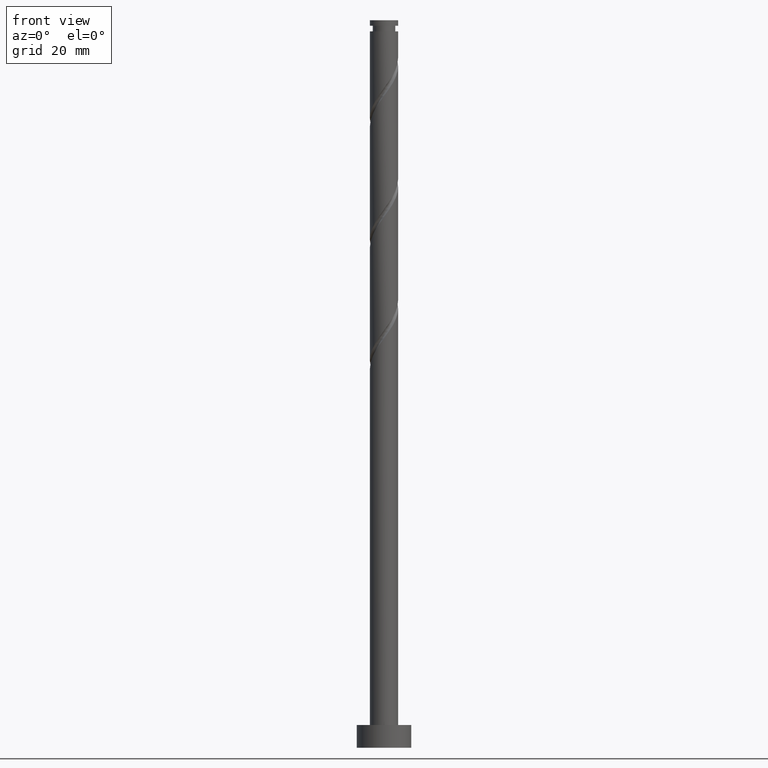
[diagram: clean part render]
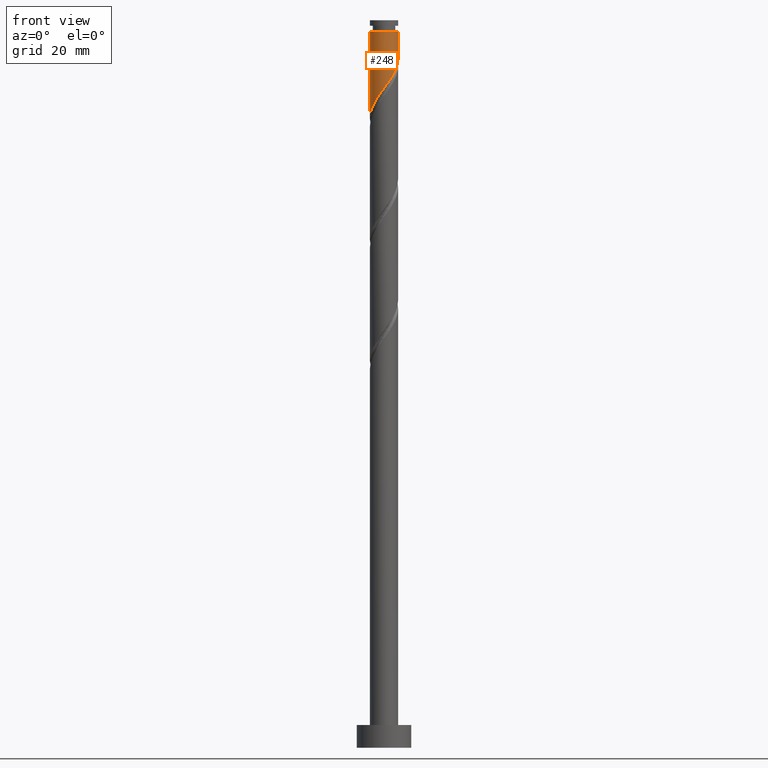
[diagram: same view with one face highlighted and labeled with its STEP entity id]
A machine part, front view. The second image highlights one B-rep face of the part: STEP entity #248.
In plain terms, the highlighted cylindrical surface (edge-blend (fillet) strip) has radius 3.1 mm, axis along (-0, -0, -1).
Its self-contained STEP definition (entity closure, byte-faithful):
#32 = CARTESIAN_POINT ( 'NONE',  ( 1.891988720823647663, -2.455682935616096962, 147.8670007255348366 ) ) ;
#41 = CARTESIAN_POINT ( 'NONE',  ( 3.100000000000000089, 3.796405077356794918E-16, 160.0000000000000000 ) ) ;
#52 = DIRECTION ( 'NONE',  ( -0.000000000000000000, -0.000000000000000000, -1.000000000000000000 ) ) ;
#63 = CARTESIAN_POINT ( 'NONE',  ( 3.099999999999993427, 3.796405077356790480E-16, 157.5639704225044682 ) ) ;
#106 = CARTESIAN_POINT ( 'NONE',  ( 2.919284625192889671, -1.042965616457420142, 150.2912431497772161 ) ) ;
#142 = CARTESIAN_POINT ( 'NONE',  ( 3.069240442222553433, -0.6232358533614318352, 150.8973037558378394 ) ) ;
#151 = CARTESIAN_POINT ( 'NONE',  ( -1.053690668162834188, -2.949304290322753985, 143.6245764831105305 ) ) ;
#162 = CARTESIAN_POINT ( 'NONE',  ( -3.100000000000000089, -8.375819593958018051E-16, 138.4134249018053140 ) ) ;
#212 = AXIS2_PLACEMENT_3D ( 'NONE', #293, #52, #345 ) ;
#248 = ADVANCED_FACE ( 'NONE', ( #432 ), #969, .T. ) ;
#263 = VECTOR ( 'NONE', #1590, 1000.000000000000000 ) ;
#286 = CARTESIAN_POINT ( 'NONE',  ( -0.6168922110061058062, -3.037999999999999368, 144.2306370891710969 ) ) ;
#293 = CARTESIAN_POINT ( 'NONE',  ( 0.000000000000000000, 0.000000000000000000, 160.0000000000000000 ) ) ;
#295 = CARTESIAN_POINT ( 'NONE',  ( 1.538914817748198383, -2.727709846153853590, 147.2609401194741281 ) ) ;
#313 = EDGE_LOOP ( 'NONE', ( #474, #660, #410, #1279 ) ) ;
#345 = DIRECTION ( 'NONE',  ( -1.000000000000000000, 0.000000000000000000, 0.000000000000000000 ) ) ;
#387 = CARTESIAN_POINT ( 'NONE',  ( 2.507195716031162203, -1.823175702315874558, 149.0791219376559980 ) ) ;
#410 = ORIENTED_EDGE ( 'NONE', *, *, #963, .T. ) ;
#418 = CARTESIAN_POINT ( 'NONE',  ( -2.480935279548628358, -1.911444469447286743, 141.2003340588681226 ) ) ;
#424 = CARTESIAN_POINT ( 'NONE',  ( 0.000000000000000000, 0.000000000000000000, 157.5639704225044682 ) ) ;
#432 = FACE_OUTER_BOUND ( 'NONE', #313, .T. ) ;
#443 = CARTESIAN_POINT ( 'NONE',  ( -2.699945692952823606, -1.523250883835454372, 140.5942734528074993 ) ) ;
#467 = VERTEX_POINT ( 'NONE', #1378 ) ;
#474 = ORIENTED_EDGE ( 'NONE', *, *, #750, .F. ) ;
#523 = CARTESIAN_POINT ( 'NONE',  ( 0.7080932853421633144, -3.050780837809066171, 146.0488189073529384 ) ) ;
#543 = CARTESIAN_POINT ( 'NONE',  ( -1.447807249622133030, -2.741141033938528704, 143.0185158770498788 ) ) ;
#563 = CIRCLE ( 'NONE', #1111, 3.099999999999993427 ) ;
#660 = ORIENTED_EDGE ( 'NONE', *, *, #723, .T. ) ;
#661 = CARTESIAN_POINT ( 'NONE',  ( -1.841923831081432095, -2.532977777554305199, 142.4124552709893123 ) ) ;
#673 = EDGE_CURVE ( 'NONE', #467, #1197, #1065, .T. ) ;
#680 = CARTESIAN_POINT ( 'NONE',  ( -3.019728287742890593, -0.7008859166835861298, 139.3821522406862528 ) ) ;
#723 = EDGE_CURVE ( 'NONE', #870, #1625, #563, .T. ) ;
#750 = EDGE_CURVE ( 'NONE', #870, #467, #929, .T. ) ;
#759 = CARTESIAN_POINT ( 'NONE',  ( 3.099999999999998757, -0.08920413222384801499, 151.6246602304204316 ) ) ;
#805 = DIRECTION ( 'NONE',  ( -1.000000000000000000, 0.000000000000000000, 0.000000000000000000 ) ) ;
#870 = VERTEX_POINT ( 'NONE', #63 ) ;
#871 = VECTOR ( 'NONE', #1056, 1000.000000000000000 ) ;
#916 = CARTESIAN_POINT ( 'NONE',  ( -3.100000000000000533, -0.3550396748938763891, 138.8993848547766277 ) ) ;
#929 = LINE ( 'NONE', #41, #871 ) ;
#949 = LINE ( 'NONE', #1195, #263 ) ;
#963 = EDGE_CURVE ( 'NONE', #1625, #1197, #949, .T. ) ;
#969 = CYLINDRICAL_SURFACE ( 'NONE', #212, 3.100000000000000089 ) ;
#983 = CARTESIAN_POINT ( 'NONE',  ( 3.099999999999998757, 2.393091312559433729E-16, 151.7467582351386568 ) ) ;
#1002 = CARTESIAN_POINT ( 'NONE',  ( -3.099999999999999645, -8.375819593958018051E-16, 138.4134249018053140 ) ) ;
#1018 = CARTESIAN_POINT ( 'NONE',  ( 2.245062623899099830, -2.183656025078340779, 148.4730613315953747 ) ) ;
#1046 = CARTESIAN_POINT ( 'NONE',  ( -2.161429555315030004, -2.222211123500795527, 141.8063946649286891 ) ) ;
#1056 = DIRECTION ( 'NONE',  ( -0.000000000000000000, -0.000000000000000000, -1.000000000000000000 ) ) ;
#1065 =( BOUNDED_CURVE ( )  B_SPLINE_CURVE ( 2, ( #983, #759, #1491, #142, #106, #1259, #387, #1018, #32, #295, #1545, #523, #1410, #1576, #286, #151, #543, #661, #1046, #418, #443, #1182, #680, #916, #162 ),
 .UNSPECIFIED., .F., .T. ) 
 B_SPLINE_CURVE_WITH_KNOTS ( ( 3, 2, 2, 2, 2, 2, 2, 2, 2, 2, 2, 2, 3 ),
 ( 0.3045252162417512731, 0.3068181818181818232, 0.3181818181818181768, 0.3295454545454545303, 0.3409090909090908839, 0.3522727272727272929, 0.3636363636363636465, 0.3750000000000000000, 0.3863636363636363535, 0.3977272727272727071, 0.4090909090909091161, 0.4204545454545454697, 0.4295252162417514397 ),
 .UNSPECIFIED. ) 
 CURVE ( )  GEOMETRIC_REPRESENTATION_ITEM ( )  RATIONAL_B_SPLINE_CURVE ( ( 0.9061101570135574601, 0.9072237824201396794, 0.9090909090909171653, 0.8998376744372194036, 0.9090909090909171653, 0.8998376744372194036, 0.9090909090909171653, 0.8998376744372194036, 0.9090909090909171653, 0.8998376744372194036, 0.9090909090909171653, 0.8998376744372194036, 0.9090909090909171653, 0.8998376744372194036, 0.9090909090909171653, 0.8998376744372194036, 0.9090909090909171653, 0.8998376744372194036, 0.9090909090909171653, 0.8998376744372194036, 0.9090909090909171653, 0.8998376744372194036, 0.9090909090909171653, 0.9017048011079968894, 0.9061101570135575711 ) ) 
 REPRESENTATION_ITEM ( '' )  );
#1111 = AXIS2_PLACEMENT_3D ( 'NONE', #424, #1427, #805 ) ;
#1182 = CARTESIAN_POINT ( 'NONE',  ( -2.918956106357020630, -1.135057298223620892, 139.9882128467469045 ) ) ;
#1195 = CARTESIAN_POINT ( 'NONE',  ( -3.100000000000000089, 0.000000000000000000, 160.0000000000000000 ) ) ;
#1197 = VERTEX_POINT ( 'NONE', #1002 ) ;
#1259 = CARTESIAN_POINT ( 'NONE',  ( 2.769328808163226796, -1.462695379553409003, 149.6851825437165928 ) ) ;
#1279 = ORIENTED_EDGE ( 'NONE', *, *, #673, .F. ) ;
#1378 = CARTESIAN_POINT ( 'NONE',  ( 3.099999999999998757, 2.393091312559433729E-16, 151.7467582351386568 ) ) ;
#1410 = CARTESIAN_POINT ( 'NONE',  ( 0.2639997657463922232, -3.088738273743155016, 145.4427583012923435 ) ) ;
#1416 = CARTESIAN_POINT ( 'NONE',  ( -3.099999999999993427, 0.000000000000000000, 157.5639704225044682 ) ) ;
#1427 = DIRECTION ( 'NONE',  ( -0.000000000000000000, -0.000000000000000000, -1.000000000000000000 ) ) ;
#1491 = CARTESIAN_POINT ( 'NONE',  ( 3.094870455675655663, -0.1782606591089404002, 151.5033643618984058 ) ) ;
#1545 = CARTESIAN_POINT ( 'NONE',  ( 1.123504051545180182, -2.889245341981459436, 146.6548795134135617 ) ) ;
#1576 = CARTESIAN_POINT ( 'NONE',  ( -0.1800937538493771750, -3.126695709677244750, 144.8366976952317202 ) ) ;
#1590 = DIRECTION ( 'NONE',  ( -0.000000000000000000, -0.000000000000000000, -1.000000000000000000 ) ) ;
#1625 = VERTEX_POINT ( 'NONE', #1416 ) ;